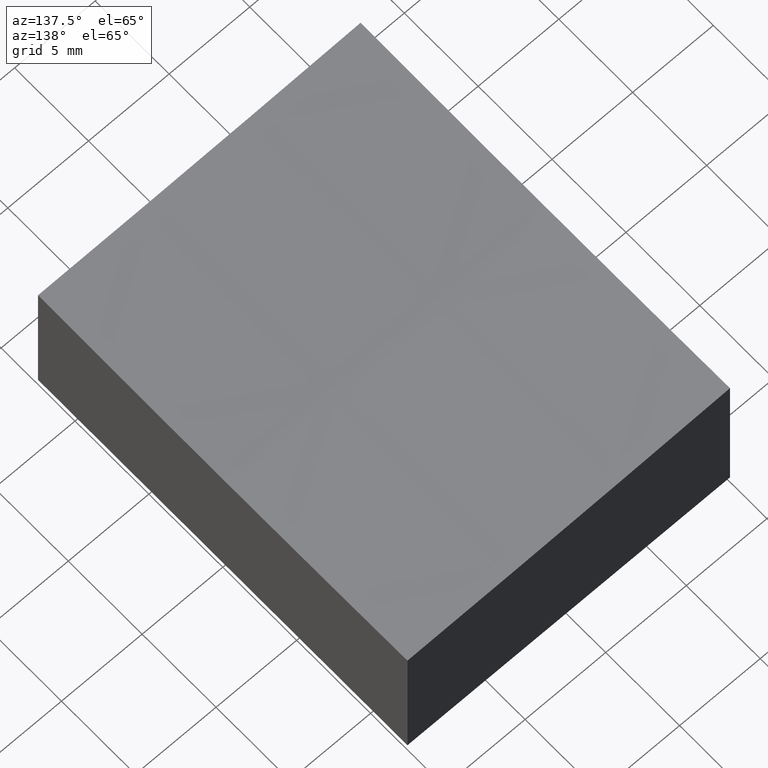
[diagram: clean part render]
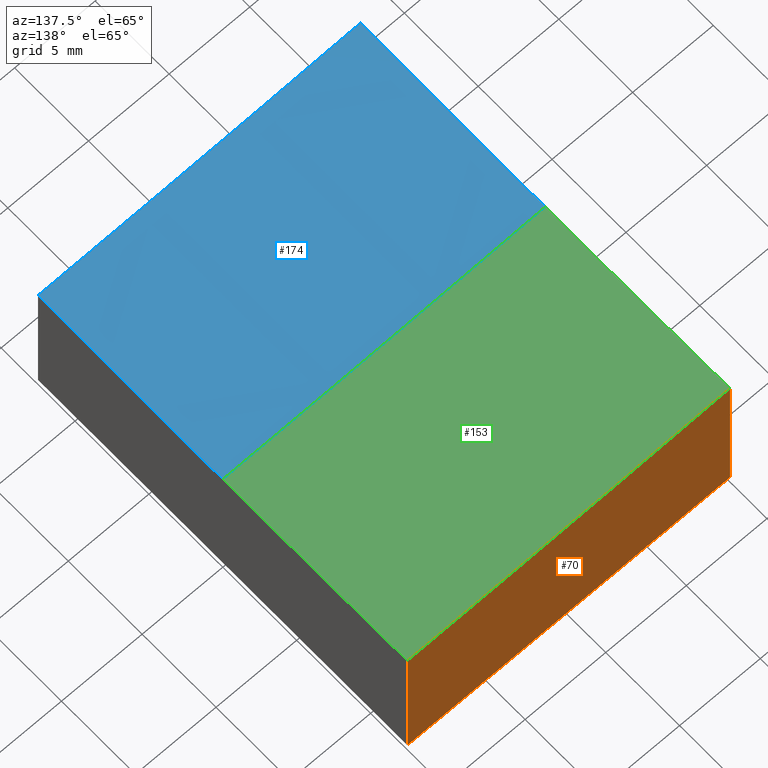
[diagram: same view with three faces highlighted in distinct colors, each labeled with its STEP entity id]
A machine part, auxiliary view with three faces highlighted in distinct colors.
Their STEP definitions:

[orange] entity #70 — the highlighted planar face has unit normal (0, -1, 0).
#11 = PLANE ( 'NONE',  #192 ) ;
#19 = EDGE_CURVE ( 'NONE', #195, #60, #38, .T. ) ;
#23 = CARTESIAN_POINT ( 'NONE',  ( -9.999999999999996447, 12.49999999999999645, -0.3486047368425060355 ) ) ;
#28 = AXIS2_PLACEMENT_3D ( 'NONE', #247, #190, #183 ) ;
#38 = LINE ( 'NONE', #125, #179 ) ;
#40 = ORIENTED_EDGE ( 'NONE', *, *, #86, .T. ) ;
#60 = VERTEX_POINT ( 'NONE', #269 ) ;
#62 = EDGE_LOOP ( 'NONE', ( #108, #180, #156, #40 ) ) ;
#70 = ADVANCED_FACE ( 'NONE', ( #76 ), #11, .F. ) ;
#72 = CARTESIAN_POINT ( 'NONE',  ( -9.999999999999998224, 12.49999999999999645, -10.00000000000000000 ) ) ;
#76 = FACE_OUTER_BOUND ( 'NONE', #62, .T. ) ;
#84 = VERTEX_POINT ( 'NONE', #23 ) ;
#86 = EDGE_CURVE ( 'NONE', #60, #178, #166, .T. ) ;
#99 = CARTESIAN_POINT ( 'NONE',  ( 10.00000000000000178, 12.50000000000000000, -10.00000000000000000 ) ) ;
#107 = DIRECTION ( 'NONE',  ( -0.000000000000000000, -0.000000000000000000, -1.000000000000000000 ) ) ;
#108 = ORIENTED_EDGE ( 'NONE', *, *, #266, .F. ) ;
#118 = DIRECTION ( 'NONE',  ( 1.000000000000000000, 1.734723475976807094E-16, 0.000000000000000000 ) ) ;
#122 = EDGE_CURVE ( 'NONE', #84, #195, #147, .T. ) ;
#124 = DIRECTION ( 'NONE',  ( -0.000000000000000000, -0.000000000000000000, -1.000000000000000000 ) ) ;
#125 = CARTESIAN_POINT ( 'NONE',  ( 10.00000000000000178, 12.50000000000000000, 10.00000000000000000 ) ) ;
#126 = LINE ( 'NONE', #216, #145 ) ;
#143 = DIRECTION ( 'NONE',  ( 1.734723475976807094E-16, -1.000000000000000000, 0.000000000000000000 ) ) ;
#145 = VECTOR ( 'NONE', #124, 1000.000000000000000 ) ;
#147 = CIRCLE ( 'NONE', #28, 599.8697775350912025 ) ;
#156 = ORIENTED_EDGE ( 'NONE', *, *, #19, .T. ) ;
#158 = CARTESIAN_POINT ( 'NONE',  ( 10.00000000000000178, 12.50000000000000000, -0.8489393172249615205 ) ) ;
#166 = LINE ( 'NONE', #99, #219 ) ;
#178 = VERTEX_POINT ( 'NONE', #72 ) ;
#179 = VECTOR ( 'NONE', #107, 1000.000000000000000 ) ;
#180 = ORIENTED_EDGE ( 'NONE', *, *, #122, .T. ) ;
#183 = DIRECTION ( 'NONE',  ( 1.000000000000000000, 1.735100057654092364E-16, 0.000000000000000000 ) ) ;
#190 = DIRECTION ( 'NONE',  ( 1.734723475976807094E-16, -1.000000000000000000, 0.000000000000000000 ) ) ;
#191 = DIRECTION ( 'NONE',  ( -1.000000000000000000, -1.734723475976807094E-16, 0.000000000000000000 ) ) ;
#192 = AXIS2_PLACEMENT_3D ( 'NONE', #263, #143, #118 ) ;
#195 = VERTEX_POINT ( 'NONE', #158 ) ;
#216 = CARTESIAN_POINT ( 'NONE',  ( -9.999999999999998224, 12.49999999999999645, 10.00000000000000000 ) ) ;
#219 = VECTOR ( 'NONE', #191, 1000.000000000000000 ) ;
#247 = CARTESIAN_POINT ( 'NONE',  ( 15.00000000000007461, 12.50000000000000178, 599.0000000000000000 ) ) ;
#263 = CARTESIAN_POINT ( 'NONE',  ( 10.00000000000000178, 12.50000000000000000, 10.00000000000000000 ) ) ;
#266 = EDGE_CURVE ( 'NONE', #84, #178, #126, .T. ) ;
#269 = CARTESIAN_POINT ( 'NONE',  ( 10.00000000000000178, 12.50000000000000000, -10.00000000000000000 ) ) ;

[blue] entity #174 — the highlighted spherical surface has radius 600 mm.
#3 = CIRCLE ( 'NONE', #17, 599.9999999999998863 ) ;
#10 = DIRECTION ( 'NONE',  ( 0.000000000000000000, 1.000000000000000000, -0.000000000000000000 ) ) ;
#17 = AXIS2_PLACEMENT_3D ( 'NONE', #123, #210, #232 ) ;
#35 = DIRECTION ( 'NONE',  ( -1.734723475976807094E-16, 1.000000000000000000, 0.000000000000000000 ) ) ;
#51 = CARTESIAN_POINT ( 'NONE',  ( -9.999999999999998224, 0.000000000000000000, 599.0000000000000000 ) ) ;
#64 = EDGE_LOOP ( 'NONE', ( #173, #238, #243, #149 ) ) ;
#69 = DIRECTION ( 'NONE',  ( -1.000000000000000000, 0.000000000000000000, 1.850371707708594563E-16 ) ) ;
#75 = AXIS2_PLACEMENT_3D ( 'NONE', #249, #10, #69 ) ;
#77 = CARTESIAN_POINT ( 'NONE',  ( 10.00000000000000178, 0.000000000000000000, 599.0000000000000000 ) ) ;
#80 = CARTESIAN_POINT ( 'NONE',  ( -10.00000000000000000, -12.50000000000000355, -0.3486047368425060355 ) ) ;
#98 = CIRCLE ( 'NONE', #154, 599.9791663049641102 ) ;
#100 = EDGE_CURVE ( 'NONE', #255, #212, #98, .T. ) ;
#101 = AXIS2_PLACEMENT_3D ( 'NONE', #102, #35, #170 ) ;
#102 = CARTESIAN_POINT ( 'NONE',  ( 15.00000000000007816, -12.49999999999999822, 599.0000000000000000 ) ) ;
#110 = VERTEX_POINT ( 'NONE', #252 ) ;
#117 = DIRECTION ( 'NONE',  ( 0.000000000000000000, 0.000000000000000000, 1.000000000000000000 ) ) ;
#120 = SPHERICAL_SURFACE ( 'NONE', #75, 599.9999999999998863 ) ;
#123 = CARTESIAN_POINT ( 'NONE',  ( 15.00000000000007638, 0.000000000000000000, 599.0000000000000000 ) ) ;
#129 = CARTESIAN_POINT ( 'NONE',  ( 10.00000000000000178, -12.50000000000000000, -0.8489393172249615205 ) ) ;
#137 = DIRECTION ( 'NONE',  ( 1.000000000000000000, 0.000000000000000000, 0.000000000000000000 ) ) ;
#149 = ORIENTED_EDGE ( 'NONE', *, *, #100, .F. ) ;
#154 = AXIS2_PLACEMENT_3D ( 'NONE', #77, #167, #117 ) ;
#157 = CIRCLE ( 'NONE', #101, 599.8697775350912025 ) ;
#163 = EDGE_CURVE ( 'NONE', #277, #110, #215, .T. ) ;
#167 = DIRECTION ( 'NONE',  ( -1.000000000000000000, 0.000000000000000000, 0.000000000000000000 ) ) ;
#170 = DIRECTION ( 'NONE',  ( -1.000000000000000000, -1.735100057654092364E-16, 0.000000000000000000 ) ) ;
#173 = ORIENTED_EDGE ( 'NONE', *, *, #271, .F. ) ;
#174 = ADVANCED_FACE ( 'NONE', ( #227 ), #120, .F. ) ;
#210 = DIRECTION ( 'NONE',  ( 0.000000000000000000, -1.000000000000000000, 0.000000000000000000 ) ) ;
#212 = VERTEX_POINT ( 'NONE', #129 ) ;
#215 = CIRCLE ( 'NONE', #235, 599.4789404140898341 ) ;
#220 = EDGE_CURVE ( 'NONE', #212, #277, #157, .T. ) ;
#227 = FACE_OUTER_BOUND ( 'NONE', #64, .T. ) ;
#229 = DIRECTION ( 'NONE',  ( 0.000000000000000000, 0.000000000000000000, -1.000000000000000000 ) ) ;
#232 = DIRECTION ( 'NONE',  ( 0.000000000000000000, 0.000000000000000000, -1.000000000000000000 ) ) ;
#235 = AXIS2_PLACEMENT_3D ( 'NONE', #51, #137, #229 ) ;
#237 = CARTESIAN_POINT ( 'NONE',  ( 10.00000000000000178, 0.000000000000000000, -0.9791663049642518324 ) ) ;
#238 = ORIENTED_EDGE ( 'NONE', *, *, #163, .F. ) ;
#243 = ORIENTED_EDGE ( 'NONE', *, *, #220, .F. ) ;
#249 = CARTESIAN_POINT ( 'NONE',  ( 15.00000000000007638, 0.000000000000000000, 599.0000000000000000 ) ) ;
#252 = CARTESIAN_POINT ( 'NONE',  ( -10.00000000000000000, 0.000000000000000000, -0.4789404140898012585 ) ) ;
#255 = VERTEX_POINT ( 'NONE', #237 ) ;
#271 = EDGE_CURVE ( 'NONE', #110, #255, #3, .T. ) ;
#277 = VERTEX_POINT ( 'NONE', #80 ) ;

[green] entity #153 — the highlighted spherical surface has radius 600 mm.
#1 = ORIENTED_EDGE ( 'NONE', *, *, #122, .F. ) ;
#3 = CIRCLE ( 'NONE', #17, 599.9999999999998863 ) ;
#7 = CARTESIAN_POINT ( 'NONE',  ( 10.00000000000000178, 0.000000000000000000, 599.0000000000000000 ) ) ;
#12 = AXIS2_PLACEMENT_3D ( 'NONE', #250, #31, #139 ) ;
#17 = AXIS2_PLACEMENT_3D ( 'NONE', #123, #210, #232 ) ;
#23 = CARTESIAN_POINT ( 'NONE',  ( -9.999999999999996447, 12.49999999999999645, -0.3486047368425060355 ) ) ;
#27 = CARTESIAN_POINT ( 'NONE',  ( -9.999999999999998224, 0.000000000000000000, 599.0000000000000000 ) ) ;
#28 = AXIS2_PLACEMENT_3D ( 'NONE', #247, #190, #183 ) ;
#31 = DIRECTION ( 'NONE',  ( 0.000000000000000000, 1.000000000000000000, -0.000000000000000000 ) ) ;
#46 = DIRECTION ( 'NONE',  ( 0.000000000000000000, 0.000000000000000000, 1.000000000000000000 ) ) ;
#74 = DIRECTION ( 'NONE',  ( -1.000000000000000000, 0.000000000000000000, 0.000000000000000000 ) ) ;
#84 = VERTEX_POINT ( 'NONE', #23 ) ;
#90 = EDGE_CURVE ( 'NONE', #195, #255, #92, .T. ) ;
#92 = CIRCLE ( 'NONE', #251, 599.9791663049641102 ) ;
#104 = ORIENTED_EDGE ( 'NONE', *, *, #271, .T. ) ;
#109 = EDGE_LOOP ( 'NONE', ( #260, #104, #224, #1 ) ) ;
#110 = VERTEX_POINT ( 'NONE', #252 ) ;
#115 = SPHERICAL_SURFACE ( 'NONE', #12, 599.9999999999998863 ) ;
#122 = EDGE_CURVE ( 'NONE', #84, #195, #147, .T. ) ;
#123 = CARTESIAN_POINT ( 'NONE',  ( 15.00000000000007638, 0.000000000000000000, 599.0000000000000000 ) ) ;
#139 = DIRECTION ( 'NONE',  ( -1.000000000000000000, 0.000000000000000000, 1.850371707708594563E-16 ) ) ;
#146 = DIRECTION ( 'NONE',  ( 1.000000000000000000, 0.000000000000000000, 0.000000000000000000 ) ) ;
#147 = CIRCLE ( 'NONE', #28, 599.8697775350912025 ) ;
#153 = ADVANCED_FACE ( 'NONE', ( #230 ), #115, .F. ) ;
#158 = CARTESIAN_POINT ( 'NONE',  ( 10.00000000000000178, 12.50000000000000000, -0.8489393172249615205 ) ) ;
#171 = CIRCLE ( 'NONE', #275, 599.4789404140898341 ) ;
#183 = DIRECTION ( 'NONE',  ( 1.000000000000000000, 1.735100057654092364E-16, 0.000000000000000000 ) ) ;
#190 = DIRECTION ( 'NONE',  ( 1.734723475976807094E-16, -1.000000000000000000, 0.000000000000000000 ) ) ;
#195 = VERTEX_POINT ( 'NONE', #158 ) ;
#196 = EDGE_CURVE ( 'NONE', #110, #84, #171, .T. ) ;
#210 = DIRECTION ( 'NONE',  ( 0.000000000000000000, -1.000000000000000000, 0.000000000000000000 ) ) ;
#224 = ORIENTED_EDGE ( 'NONE', *, *, #90, .F. ) ;
#230 = FACE_OUTER_BOUND ( 'NONE', #109, .T. ) ;
#232 = DIRECTION ( 'NONE',  ( 0.000000000000000000, 0.000000000000000000, -1.000000000000000000 ) ) ;
#234 = DIRECTION ( 'NONE',  ( 0.000000000000000000, 0.000000000000000000, -1.000000000000000000 ) ) ;
#237 = CARTESIAN_POINT ( 'NONE',  ( 10.00000000000000178, 0.000000000000000000, -0.9791663049642518324 ) ) ;
#247 = CARTESIAN_POINT ( 'NONE',  ( 15.00000000000007461, 12.50000000000000178, 599.0000000000000000 ) ) ;
#250 = CARTESIAN_POINT ( 'NONE',  ( 15.00000000000007638, 0.000000000000000000, 599.0000000000000000 ) ) ;
#251 = AXIS2_PLACEMENT_3D ( 'NONE', #7, #74, #46 ) ;
#252 = CARTESIAN_POINT ( 'NONE',  ( -10.00000000000000000, 0.000000000000000000, -0.4789404140898012585 ) ) ;
#255 = VERTEX_POINT ( 'NONE', #237 ) ;
#260 = ORIENTED_EDGE ( 'NONE', *, *, #196, .F. ) ;
#271 = EDGE_CURVE ( 'NONE', #110, #255, #3, .T. ) ;
#275 = AXIS2_PLACEMENT_3D ( 'NONE', #27, #146, #234 ) ;